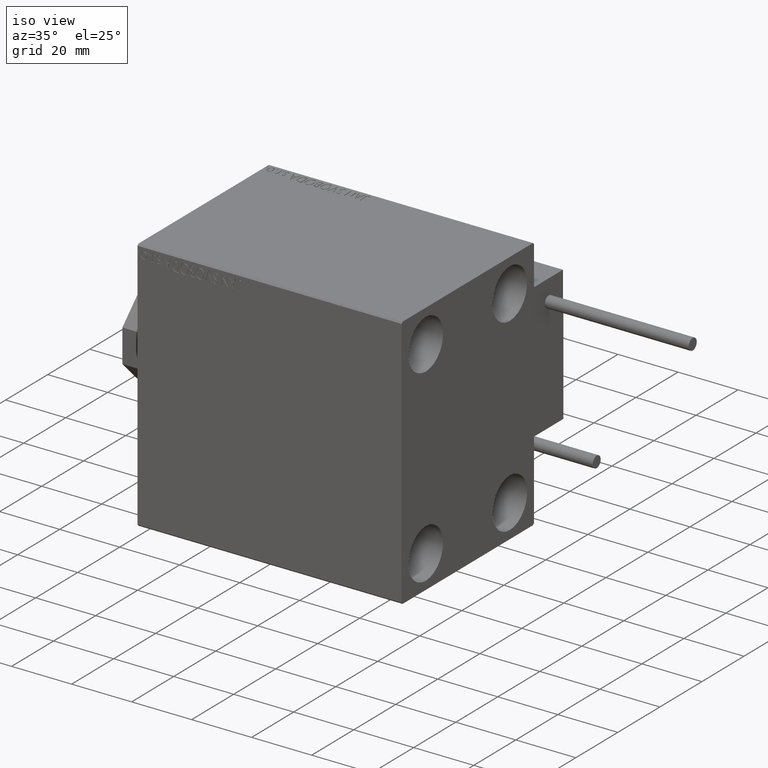
[diagram: clean part render]
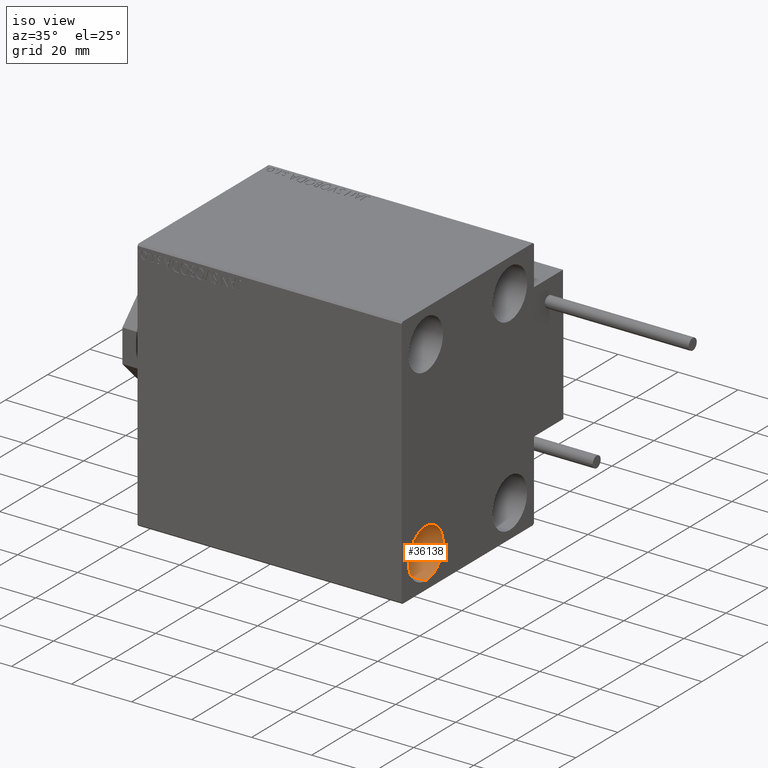
[diagram: same view with one face highlighted and labeled with its STEP entity id]
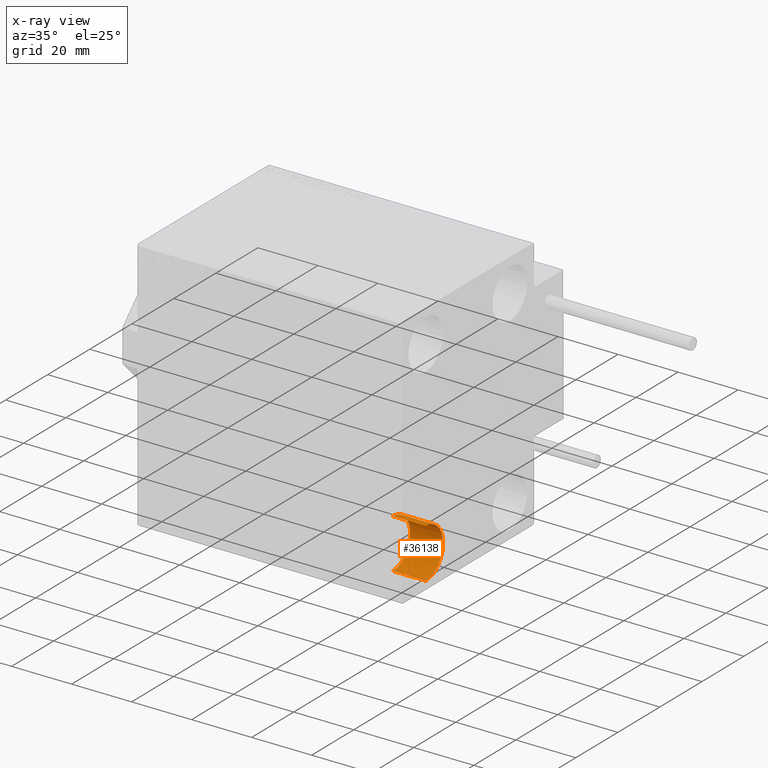
[diagram: x-ray of the same camera — body ghosted, the highlighted face saturated]
A machine part, iso view. The second image highlights one B-rep face of the part: STEP entity #36138.
The next image is the same camera in x-ray: the body ghosted, the highlighted face saturated — about 0% of this face is hidden behind the body in this view.
In plain terms, the highlighted cylindrical surface (edge-blend (fillet) strip) has radius 8.25 mm, axis along (1, 0, 0).
Its self-contained STEP definition (entity closure, byte-faithful):
#156 = CARTESIAN_POINT ( 'NONE',  ( 77.00000000000000000, -20.00000000000000355, -23.24999999999999289 ) ) ;
#4659 = CYLINDRICAL_SURFACE ( 'NONE', #44165, 8.250000000000000000 ) ;
#8732 = CARTESIAN_POINT ( 'NONE',  ( 77.00000000000000000, -20.00000000000000355, -31.49999999999999289 ) ) ;
#9796 = CARTESIAN_POINT ( 'NONE',  ( 77.00000000000000000, -20.00000000000000355, -31.49999999999999289 ) ) ;
#10507 = EDGE_CURVE ( 'NONE', #24682, #30461, #23796, .T. ) ;
#12124 = ORIENTED_EDGE ( 'NONE', *, *, #10507, .F. ) ;
#14061 = CARTESIAN_POINT ( 'NONE',  ( 77.00000000000000000, -20.00000000000000355, -39.74999999999999289 ) ) ;
#15216 = VERTEX_POINT ( 'NONE', #14061 ) ;
#16497 = VERTEX_POINT ( 'NONE', #25903 ) ;
#17551 = ORIENTED_EDGE ( 'NONE', *, *, #41458, .T. ) ;
#17933 = DIRECTION ( 'NONE',  ( -1.000000000000000000, -0.000000000000000000, -0.000000000000000000 ) ) ;
#20415 = DIRECTION ( 'NONE',  ( 0.000000000000000000, 0.000000000000000000, -1.000000000000000000 ) ) ;
#21030 = AXIS2_PLACEMENT_3D ( 'NONE', #23449, #38986, #33923 ) ;
#23272 = ORIENTED_EDGE ( 'NONE', *, *, #27046, .F. ) ;
#23449 = CARTESIAN_POINT ( 'NONE',  ( 88.00000000000000000, -20.00000000000000355, -31.49999999999999289 ) ) ;
#23563 = AXIS2_PLACEMENT_3D ( 'NONE', #9796, #17933, #25316 ) ;
#23635 = ORIENTED_EDGE ( 'NONE', *, *, #25863, .T. ) ;
#23796 = LINE ( 'NONE', #36257, #38987 ) ;
#23859 = CARTESIAN_POINT ( 'NONE',  ( 77.00000000000000000, -20.00000000000000355, -39.74999999999999289 ) ) ;
#24496 = DIRECTION ( 'NONE',  ( 1.000000000000000000, -0.000000000000000000, -0.000000000000000000 ) ) ;
#24682 = VERTEX_POINT ( 'NONE', #156 ) ;
#25316 = DIRECTION ( 'NONE',  ( 0.000000000000000000, 0.000000000000000000, 1.000000000000000000 ) ) ;
#25863 = EDGE_CURVE ( 'NONE', #24682, #15216, #45531, .T. ) ;
#25903 = CARTESIAN_POINT ( 'NONE',  ( 88.00000000000000000, -20.00000000000000355, -39.74999999999999289 ) ) ;
#27046 = EDGE_CURVE ( 'NONE', #30461, #16497, #44631, .T. ) ;
#30461 = VERTEX_POINT ( 'NONE', #48529 ) ;
#33923 = DIRECTION ( 'NONE',  ( 0.000000000000000000, 0.000000000000000000, 1.000000000000000000 ) ) ;
#36077 = DIRECTION ( 'NONE',  ( 1.000000000000000000, -0.000000000000000000, -0.000000000000000000 ) ) ;
#36138 = ADVANCED_FACE ( 'NONE', ( #40286 ), #4659, .F. ) ;
#36257 = CARTESIAN_POINT ( 'NONE',  ( 77.00000000000000000, -20.00000000000000355, -23.24999999999999289 ) ) ;
#38986 = DIRECTION ( 'NONE',  ( -1.000000000000000000, -0.000000000000000000, -0.000000000000000000 ) ) ;
#38987 = VECTOR ( 'NONE', #39835, 1000.000000000000000 ) ;
#39639 = LINE ( 'NONE', #23859, #49079 ) ;
#39835 = DIRECTION ( 'NONE',  ( 1.000000000000000000, -0.000000000000000000, -0.000000000000000000 ) ) ;
#40286 = FACE_OUTER_BOUND ( 'NONE', #40302, .T. ) ;
#40302 = EDGE_LOOP ( 'NONE', ( #12124, #23635, #17551, #23272 ) ) ;
#41458 = EDGE_CURVE ( 'NONE', #15216, #16497, #39639, .T. ) ;
#44165 = AXIS2_PLACEMENT_3D ( 'NONE', #8732, #24496, #20415 ) ;
#44631 = CIRCLE ( 'NONE', #21030, 8.250000000000000000 ) ;
#45531 = CIRCLE ( 'NONE', #23563, 8.250000000000000000 ) ;
#48529 = CARTESIAN_POINT ( 'NONE',  ( 88.00000000000000000, -20.00000000000000355, -23.24999999999999289 ) ) ;
#49079 = VECTOR ( 'NONE', #36077, 1000.000000000000000 ) ;